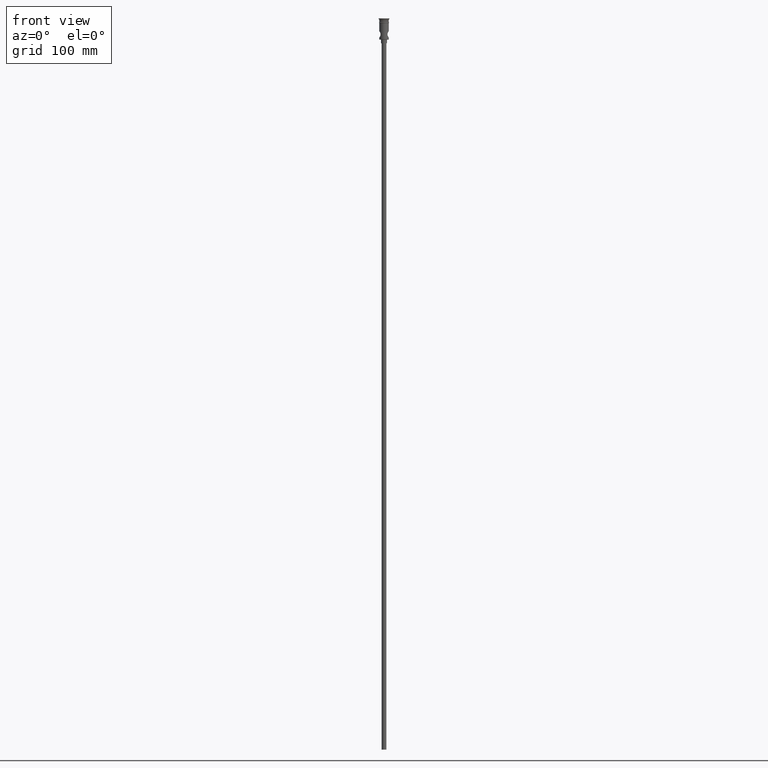
[diagram: clean part render]
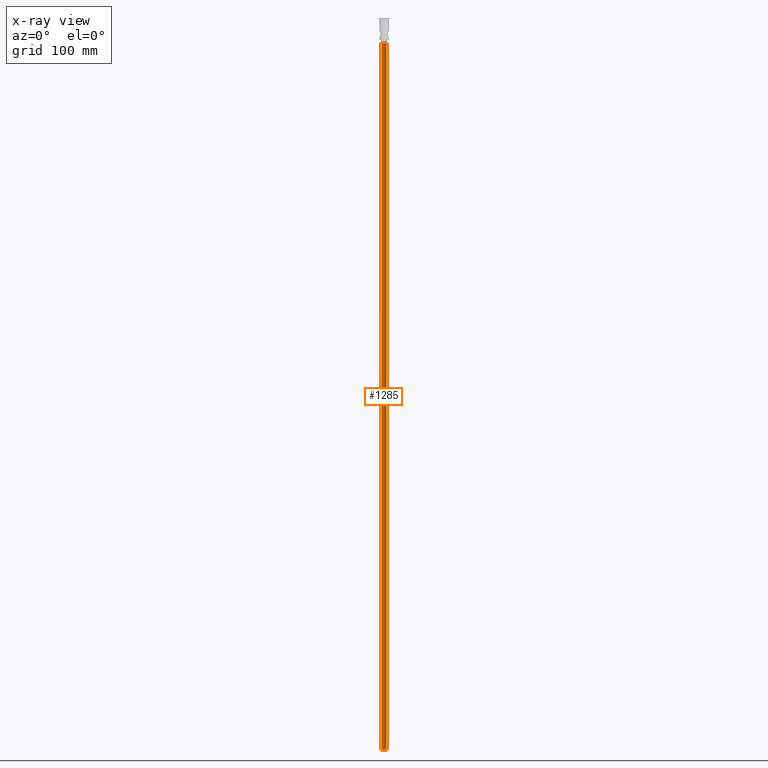
[diagram: x-ray — body ghosted, one internal face saturated and labeled with its STEP entity id]
A machine part, front view, then the same camera in x-ray: the body is ghosted and one INTERNAL B-rep face — a face not visible from any outside direction — is saturated and labeled: STEP entity #1285.
In plain terms, the highlighted cylindrical surface (edge-blend (fillet) strip) has radius 2 mm, axis along (-0, -0, 1).
Its self-contained STEP definition (entity closure, byte-faithful):
#5 = VERTEX_POINT ( 'NONE', #657 ) ;
#68 = CARTESIAN_POINT ( 'NONE',  ( 0.000000000000000000, 0.000000000000000000, -20.99999999999999645 ) ) ;
#87 = DIRECTION ( 'NONE',  ( -0.000000000000000000, -0.000000000000000000, 1.000000000000000000 ) ) ;
#141 = EDGE_CURVE ( 'NONE', #498, #214, #205, .T. ) ;
#181 = VECTOR ( 'NONE', #1091, 1000.000000000000000 ) ;
#190 = DIRECTION ( 'NONE',  ( -1.000000000000000000, 0.000000000000000000, 0.000000000000000000 ) ) ;
#205 = CIRCLE ( 'NONE', #439, 2.000000000000000000 ) ;
#214 = VERTEX_POINT ( 'NONE', #1313 ) ;
#221 = CARTESIAN_POINT ( 'NONE',  ( -2.000000000000000000, 2.449293598294706414E-16, -20.99999999999999645 ) ) ;
#229 = DIRECTION ( 'NONE',  ( -0.000000000000000000, -0.000000000000000000, 1.000000000000000000 ) ) ;
#253 = CIRCLE ( 'NONE', #446, 2.000000000000000000 ) ;
#305 = ORIENTED_EDGE ( 'NONE', *, *, #986, .T. ) ;
#329 = AXIS2_PLACEMENT_3D ( 'NONE', #872, #229, #893 ) ;
#331 = FACE_OUTER_BOUND ( 'NONE', #1129, .T. ) ;
#429 = CYLINDRICAL_SURFACE ( 'NONE', #329, 2.000000000000000000 ) ;
#439 = AXIS2_PLACEMENT_3D ( 'NONE', #68, #515, #1049 ) ;
#440 = DIRECTION ( 'NONE',  ( 0.000000000000000000, 0.000000000000000000, -1.000000000000000000 ) ) ;
#446 = AXIS2_PLACEMENT_3D ( 'NONE', #555, #440, #190 ) ;
#498 = VERTEX_POINT ( 'NONE', #221 ) ;
#515 = DIRECTION ( 'NONE',  ( 0.000000000000000000, 0.000000000000000000, -1.000000000000000000 ) ) ;
#539 = CARTESIAN_POINT ( 'NONE',  ( -2.000000000000000000, 2.449293598294706414E-16, -618.0000000000000000 ) ) ;
#555 = CARTESIAN_POINT ( 'NONE',  ( 0.000000000000000000, 0.000000000000000000, -618.0000000000000000 ) ) ;
#657 = CARTESIAN_POINT ( 'NONE',  ( -2.000000000000000000, 2.449293598294706414E-16, -618.0000000000000000 ) ) ;
#684 = EDGE_CURVE ( 'NONE', #817, #214, #886, .T. ) ;
#771 = CARTESIAN_POINT ( 'NONE',  ( 2.000000000000000000, 0.000000000000000000, -618.0000000000000000 ) ) ;
#817 = VERTEX_POINT ( 'NONE', #1144 ) ;
#840 = ORIENTED_EDGE ( 'NONE', *, *, #141, .T. ) ;
#872 = CARTESIAN_POINT ( 'NONE',  ( 0.000000000000000000, 0.000000000000000000, -618.0000000000000000 ) ) ;
#886 = LINE ( 'NONE', #771, #1360 ) ;
#893 = DIRECTION ( 'NONE',  ( 1.000000000000000000, 0.000000000000000000, 0.000000000000000000 ) ) ;
#983 = ORIENTED_EDGE ( 'NONE', *, *, #684, .F. ) ;
#986 = EDGE_CURVE ( 'NONE', #5, #498, #1280, .T. ) ;
#1036 = ORIENTED_EDGE ( 'NONE', *, *, #1421, .F. ) ;
#1049 = DIRECTION ( 'NONE',  ( -1.000000000000000000, 0.000000000000000000, 0.000000000000000000 ) ) ;
#1091 = DIRECTION ( 'NONE',  ( -0.000000000000000000, -0.000000000000000000, 1.000000000000000000 ) ) ;
#1129 = EDGE_LOOP ( 'NONE', ( #1036, #305, #840, #983 ) ) ;
#1144 = CARTESIAN_POINT ( 'NONE',  ( 2.000000000000000000, 0.000000000000000000, -618.0000000000000000 ) ) ;
#1280 = LINE ( 'NONE', #539, #181 ) ;
#1285 = ADVANCED_FACE ( 'NONE', ( #331 ), #429, .T. ) ;
#1313 = CARTESIAN_POINT ( 'NONE',  ( 2.000000000000000000, 0.000000000000000000, -20.99999999999999645 ) ) ;
#1360 = VECTOR ( 'NONE', #87, 1000.000000000000000 ) ;
#1421 = EDGE_CURVE ( 'NONE', #5, #817, #253, .T. ) ;